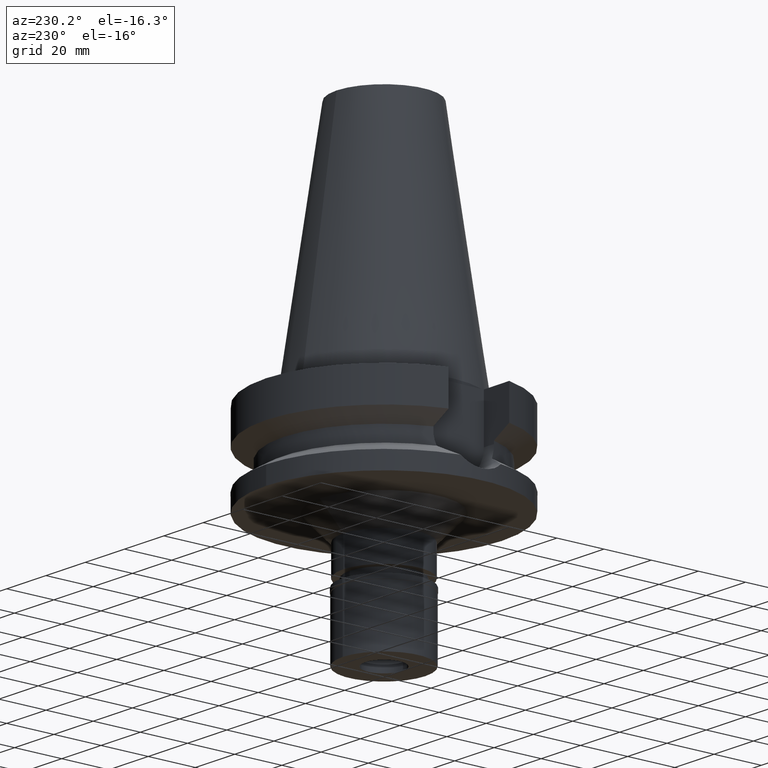
[diagram: clean part render]
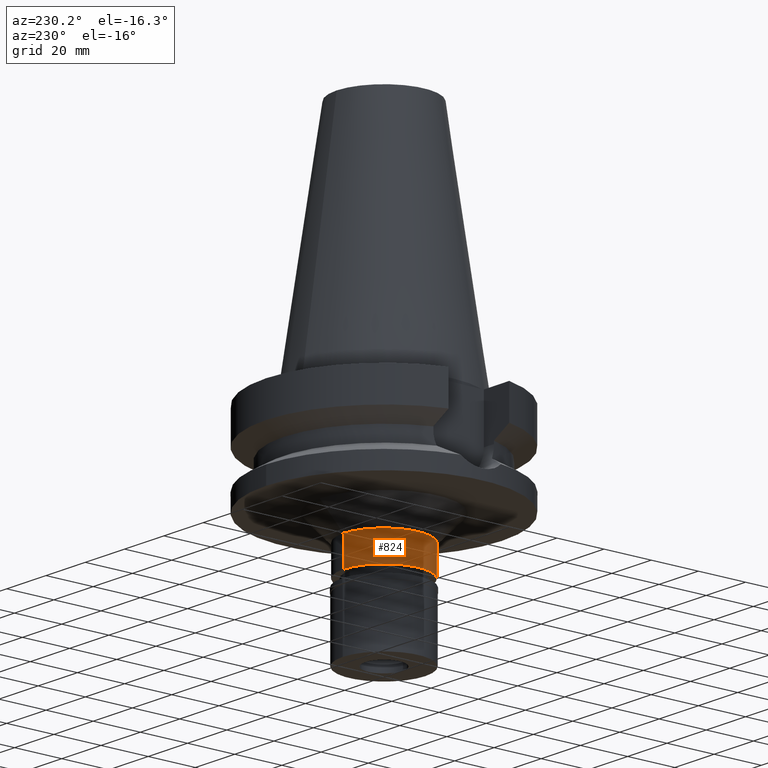
[diagram: same view with one face highlighted and labeled with its STEP entity id]
A machine part, auxiliary view. The second image highlights one B-rep face of the part: STEP entity #824.
In plain terms, the highlighted cylindrical surface (partial cylindrical patch) has radius 17.25 mm, axis along (0, 0, -1).
Its self-contained STEP definition (entity closure, byte-faithful):
#83 = EDGE_CURVE ( 'NONE', #791, #1220, #2606, .T. ) ;
#331 = CIRCLE ( 'NONE', #3069, 17.25000000000000000 ) ;
#388 = DIRECTION ( 'NONE',  ( 0.0000000000000000000, 0.0000000000000000000, 1.000000000000000000 ) ) ;
#389 = EDGE_LOOP ( 'NONE', ( #1425, #2718, #3026, #3059 ) ) ;
#552 = FACE_OUTER_BOUND ( 'NONE', #389, .T. ) ;
#583 = VERTEX_POINT ( 'NONE', #2182 ) ;
#791 = VERTEX_POINT ( 'NONE', #1756 ) ;
#824 = ADVANCED_FACE ( 'NONE', ( #552 ), #2968, .T. ) ;
#850 = DIRECTION ( 'NONE',  ( 0.0000000000000000000, -1.000000000000000000, 0.0000000000000000000 ) ) ;
#1059 = DIRECTION ( 'NONE',  ( 0.0000000000000000000, 0.0000000000000000000, -1.000000000000000000 ) ) ;
#1098 = CARTESIAN_POINT ( 'NONE',  ( 0.0000000000000000000, 0.0000000000000000000, -48.00000000000000000 ) ) ;
#1127 = CARTESIAN_POINT ( 'NONE',  ( 0.0000000000000000000, 2.582045311321999724E-14, -60.19999999999999574 ) ) ;
#1220 = VERTEX_POINT ( 'NONE', #1893 ) ;
#1327 = DIRECTION ( 'NONE',  ( 0.0000000000000000000, 1.000000000000000000, 0.0000000000000000000 ) ) ;
#1425 = ORIENTED_EDGE ( 'NONE', *, *, #2415, .T. ) ;
#1516 = CARTESIAN_POINT ( 'NONE',  ( 0.0000000000000000000, -17.25000000000000000, -48.00000000000000000 ) ) ;
#1588 = LINE ( 'NONE', #2315, #2994 ) ;
#1592 = DIRECTION ( 'NONE',  ( 0.0000000000000000000, 0.0000000000000000000, -1.000000000000000000 ) ) ;
#1719 = VERTEX_POINT ( 'NONE', #2348 ) ;
#1756 = CARTESIAN_POINT ( 'NONE',  ( 0.0000000000000000000, -17.25000000000000000, -48.00000000000000000 ) ) ;
#1778 = EDGE_CURVE ( 'NONE', #1220, #1719, #1588, .T. ) ;
#1893 = CARTESIAN_POINT ( 'NONE',  ( 0.0000000000000000000, 17.25000000000000000, -48.00000000000000000 ) ) ;
#1976 = LINE ( 'NONE', #1516, #2464 ) ;
#2182 = CARTESIAN_POINT ( 'NONE',  ( 0.0000000000000000000, -17.25000000000000000, -60.19999999999999574 ) ) ;
#2259 = CARTESIAN_POINT ( 'NONE',  ( 0.0000000000000000000, 2.582045311321999724E-14, 110.8399999999999892 ) ) ;
#2315 = CARTESIAN_POINT ( 'NONE',  ( 0.0000000000000000000, 17.25000000000000000, -48.00000000000000000 ) ) ;
#2348 = CARTESIAN_POINT ( 'NONE',  ( 0.0000000000000000000, 17.25000000000000000, -60.19999999999999574 ) ) ;
#2394 = AXIS2_PLACEMENT_3D ( 'NONE', #1098, #1592, #2999 ) ;
#2415 = EDGE_CURVE ( 'NONE', #1719, #583, #331, .T. ) ;
#2448 = AXIS2_PLACEMENT_3D ( 'NONE', #2259, #2480, #850 ) ;
#2464 = VECTOR ( 'NONE', #1059, 1000.000000000000000 ) ;
#2480 = DIRECTION ( 'NONE',  ( 0.0000000000000000000, 0.0000000000000000000, -1.000000000000000000 ) ) ;
#2606 = CIRCLE ( 'NONE', #2394, 17.25000000000000000 ) ;
#2703 = EDGE_CURVE ( 'NONE', #791, #583, #1976, .T. ) ;
#2718 = ORIENTED_EDGE ( 'NONE', *, *, #2703, .F. ) ;
#2968 = CYLINDRICAL_SURFACE ( 'NONE', #2448, 17.25000000000000000 ) ;
#2993 = DIRECTION ( 'NONE',  ( 0.0000000000000000000, 0.0000000000000000000, -1.000000000000000000 ) ) ;
#2994 = VECTOR ( 'NONE', #2993, 1000.000000000000000 ) ;
#2999 = DIRECTION ( 'NONE',  ( 0.0000000000000000000, -1.000000000000000000, 0.0000000000000000000 ) ) ;
#3026 = ORIENTED_EDGE ( 'NONE', *, *, #83, .T. ) ;
#3059 = ORIENTED_EDGE ( 'NONE', *, *, #1778, .T. ) ;
#3069 = AXIS2_PLACEMENT_3D ( 'NONE', #1127, #388, #1327 ) ;